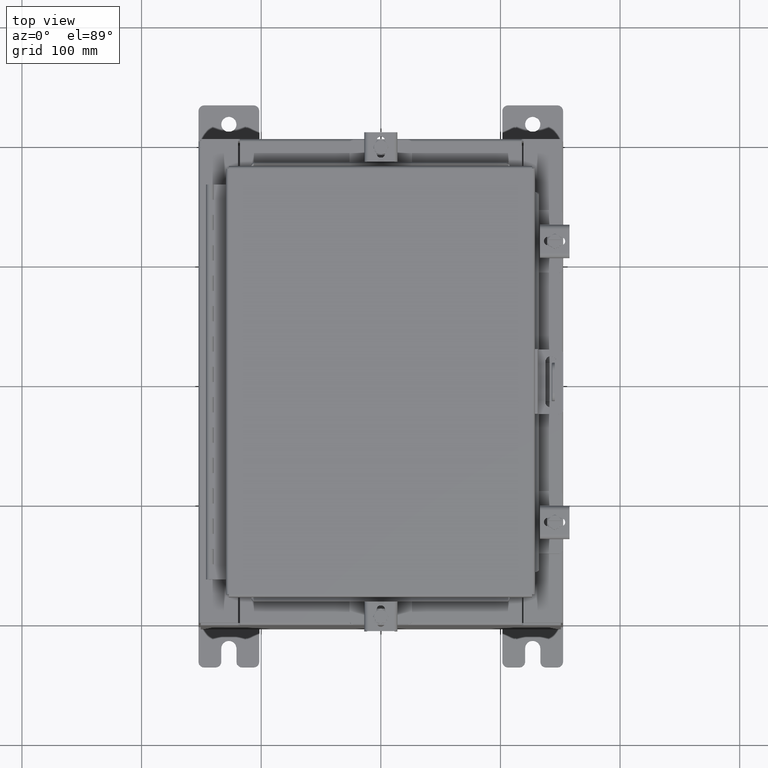
[diagram: clean part render]
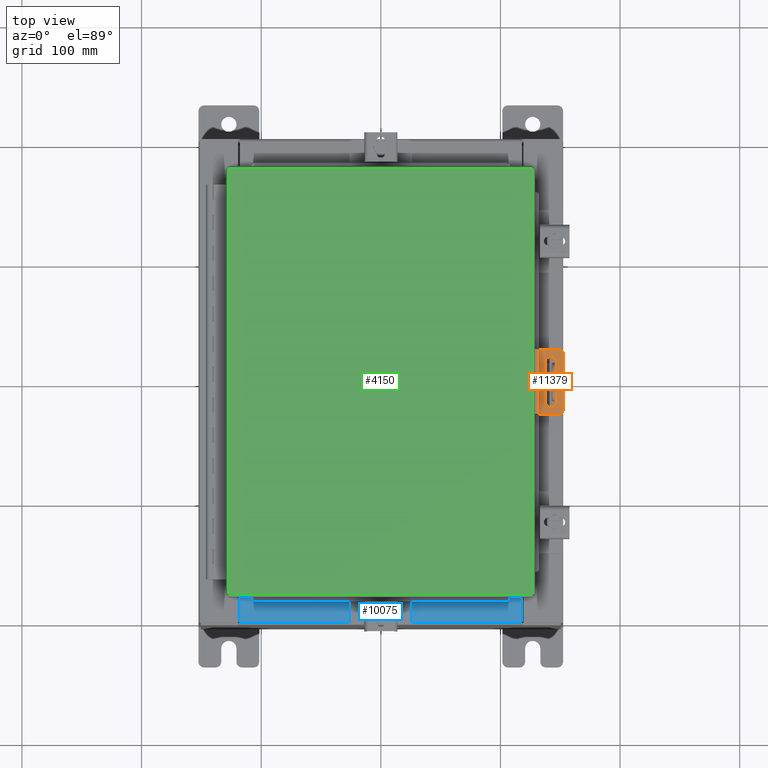
[diagram: same view with three faces highlighted in distinct colors, each labeled with its STEP entity id]
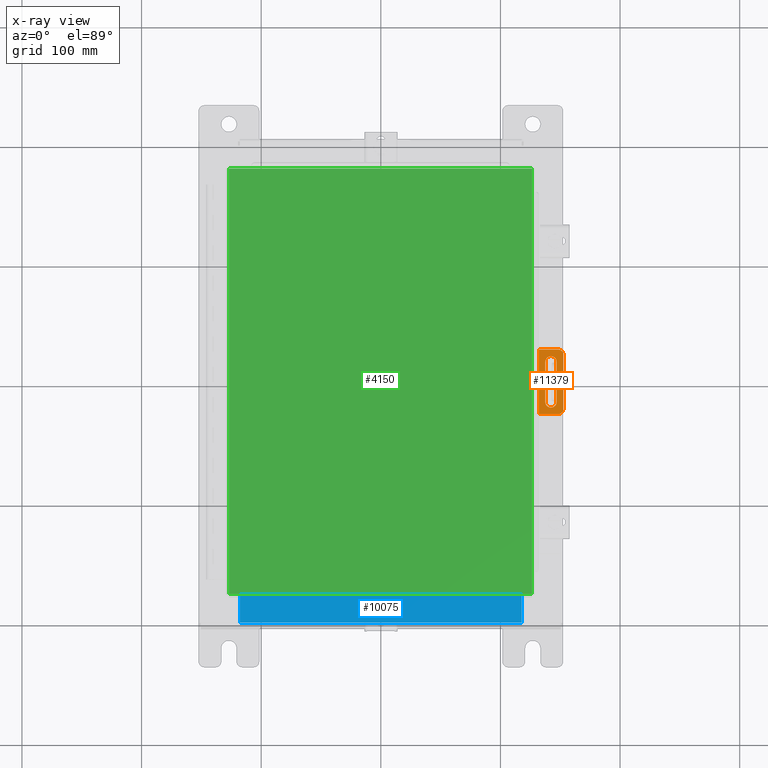
[diagram: x-ray of the same camera — body ghosted, the three highlighted faces saturated]
A machine part, top view with three faces highlighted in distinct colors.
The next image is the same camera in x-ray (body ghosted, the three faces saturated) — at least one of them is partly hidden behind the body in this view.
Their STEP definitions:

[orange] entity #11379 — the highlighted planar face has unit normal (0, 0, -1).
#15 = DIRECTION ( 'NONE',  ( 3.496114991891766800E-015, 1.000000000000000000, 0.0000000000000000000 ) ) ;
#851 = VECTOR ( 'NONE', #14208, 39.37007874015748100 ) ;
#1808 = CARTESIAN_POINT ( 'NONE',  ( 0.1299999999999998900, -0.3000000000000001000, 1.059999999999999600 ) ) ;
#1857 = LINE ( 'NONE', #17941, #12061 ) ;
#2504 = ORIENTED_EDGE ( 'NONE', *, *, #21083, .F. ) ;
#2711 = CIRCLE ( 'NONE', #6626, 0.1874999999999999700 ) ;
#3346 = ORIENTED_EDGE ( 'NONE', *, *, #14862, .T. ) ;
#3593 = VERTEX_POINT ( 'NONE', #16675 ) ;
#3845 = VERTEX_POINT ( 'NONE', #18377 ) ;
#3909 = ORIENTED_EDGE ( 'NONE', *, *, #4977, .T. ) ;
#4216 = CARTESIAN_POINT ( 'NONE',  ( 0.7839999999999999200, -0.3000000000000023200, 0.9040000000000000300 ) ) ;
#4826 = ORIENTED_EDGE ( 'NONE', *, *, #16424, .T. ) ;
#4977 = EDGE_CURVE ( 'NONE', #7710, #3593, #21788, .T. ) ;
#5103 = VECTOR ( 'NONE', #19755, 39.37007874015748100 ) ;
#5279 = CIRCLE ( 'NONE', #15867, 0.1559999999999999200 ) ;
#5734 = CARTESIAN_POINT ( 'NONE',  ( 0.3460000000000000900, -0.3000000000000008200, -0.6534999999999997500 ) ) ;
#6037 = DIRECTION ( 'NONE',  ( -3.496114991891766800E-015, -1.000000000000000000, 0.0000000000000000000 ) ) ;
#6270 = DIRECTION ( 'NONE',  ( 1.000000000000000000, -3.502369222646493300E-015, 0.0000000000000000000 ) ) ;
#6307 = LINE ( 'NONE', #16178, #851 ) ;
#6626 = AXIS2_PLACEMENT_3D ( 'NONE', #23443, #15, #19300 ) ;
#6633 = AXIS2_PLACEMENT_3D ( 'NONE', #7960, #21962, #10038 ) ;
#6665 = CARTESIAN_POINT ( 'NONE',  ( 0.3460000000000001400, -0.3000000000000008200, 0.6594999999999999800 ) ) ;
#6729 = CARTESIAN_POINT ( 'NONE',  ( 0.7839999999999999200, -0.3000000000000023800, 1.059999999999999600 ) ) ;
#7226 = EDGE_CURVE ( 'NONE', #8535, #21123, #15475, .T. ) ;
#7302 = CARTESIAN_POINT ( 'NONE',  ( 0.7840000000000000300, -0.3000000000000023800, -1.060000000000000300 ) ) ;
#7334 = EDGE_CURVE ( 'NONE', #7393, #3845, #2711, .T. ) ;
#7393 = VERTEX_POINT ( 'NONE', #20393 ) ;
#7710 = VERTEX_POINT ( 'NONE', #10387 ) ;
#7960 = CARTESIAN_POINT ( 'NONE',  ( 0.5335000000000003100, -0.3000000000000014900, 0.6594999999999999800 ) ) ;
#8004 = CARTESIAN_POINT ( 'NONE',  ( 0.9399999999999998400, -0.3000000000000029300, 1.059999999999999600 ) ) ;
#8303 = ORIENTED_EDGE ( 'NONE', *, *, #24670, .F. ) ;
#8535 = VERTEX_POINT ( 'NONE', #26039 ) ;
#8932 = FACE_BOUND ( 'NONE', #20624, .T. ) ;
#9156 = CARTESIAN_POINT ( 'NONE',  ( 0.9399999999999998400, -0.3000000000000029300, 1.059999999999999600 ) ) ;
#10038 = DIRECTION ( 'NONE',  ( -1.000000000000000000, 3.460340791974733800E-015, 0.0000000000000000000 ) ) ;
#10063 = ORIENTED_EDGE ( 'NONE', *, *, #7226, .T. ) ;
#10387 = CARTESIAN_POINT ( 'NONE',  ( 0.1299999999999998400, -0.3000000000000001000, -1.060000000000000300 ) ) ;
#10406 = ORIENTED_EDGE ( 'NONE', *, *, #7334, .F. ) ;
#10520 = EDGE_CURVE ( 'NONE', #23438, #7393, #10572, .T. ) ;
#10545 = LINE ( 'NONE', #5734, #5103 ) ;
#10572 = LINE ( 'NONE', #25757, #25810 ) ;
#10631 = DIRECTION ( 'NONE',  ( 1.000000000000000000, -3.496114991891766800E-015, 0.0000000000000000000 ) ) ;
#10813 = DIRECTION ( 'NONE',  ( -1.000000000000000000, 3.496114991891766400E-015, 0.0000000000000000000 ) ) ;
#11379 = ADVANCED_FACE ( 'NONE', ( #8932, #22977 ), #13457, .F. ) ;
#11597 = CIRCLE ( 'NONE', #6633, 0.1874999999999999700 ) ;
#11770 = ORIENTED_EDGE ( 'NONE', *, *, #10520, .F. ) ;
#12061 = VECTOR ( 'NONE', #10813, 39.37007874015748100 ) ;
#12497 = EDGE_CURVE ( 'NONE', #12597, #3593, #6307, .T. ) ;
#12597 = VERTEX_POINT ( 'NONE', #6729 ) ;
#13457 = PLANE ( 'NONE',  #20069 ) ;
#13994 = CARTESIAN_POINT ( 'NONE',  ( 0.9399999999999998400, -0.3000000000000029300, -0.9040000000000002500 ) ) ;
#14208 = DIRECTION ( 'NONE',  ( -1.000000000000000000, 3.496114991891766400E-015, 0.0000000000000000000 ) ) ;
#14833 = CARTESIAN_POINT ( 'NONE',  ( 0.7839999999999999200, -0.3000000000000023200, -0.9040000000000002500 ) ) ;
#14839 = VECTOR ( 'NONE', #21483, 39.37007874015748100 ) ;
#14862 = EDGE_CURVE ( 'NONE', #25163, #7710, #1857, .T. ) ;
#15082 = CARTESIAN_POINT ( 'NONE',  ( 0.7210000000000002000, -0.3000000000000021500, 0.6595000000000002000 ) ) ;
#15321 = VECTOR ( 'NONE', #22091, 39.37007874015748100 ) ;
#15475 = LINE ( 'NONE', #9156, #14839 ) ;
#15867 = AXIS2_PLACEMENT_3D ( 'NONE', #14833, #21027, #18508 ) ;
#16178 = CARTESIAN_POINT ( 'NONE',  ( 0.9399999999999998400, -0.3000000000000029300, 1.059999999999999600 ) ) ;
#16424 = EDGE_CURVE ( 'NONE', #21123, #25163, #5279, .T. ) ;
#16675 = CARTESIAN_POINT ( 'NONE',  ( 0.1299999999999998400, -0.3000000000000001000, 1.059999999999999600 ) ) ;
#16833 = AXIS2_PLACEMENT_3D ( 'NONE', #4216, #18349, #6270 ) ;
#17165 = ORIENTED_EDGE ( 'NONE', *, *, #12497, .F. ) ;
#17302 = EDGE_LOOP ( 'NONE', ( #10063, #4826, #3346, #3909, #17165, #24351 ) ) ;
#17935 = CIRCLE ( 'NONE', #16833, 0.1559999999999999200 ) ;
#17941 = CARTESIAN_POINT ( 'NONE',  ( 0.9399999999999998400, -0.3000000000000029300, -1.060000000000000300 ) ) ;
#18349 = DIRECTION ( 'NONE',  ( 3.496114991891766800E-015, 1.000000000000000000, -0.0000000000000000000 ) ) ;
#18377 = CARTESIAN_POINT ( 'NONE',  ( 0.3460000000000000900, -0.3000000000000008800, -0.6534999999999997500 ) ) ;
#18508 = DIRECTION ( 'NONE',  ( 1.000000000000000000, -3.502369222646493300E-015, 0.0000000000000000000 ) ) ;
#19300 = DIRECTION ( 'NONE',  ( -1.000000000000000000, 3.460340791974733800E-015, 0.0000000000000000000 ) ) ;
#19755 = DIRECTION ( 'NONE',  ( 5.201538449474986600E-017, 0.0000000000000000000, 1.000000000000000000 ) ) ;
#20005 = VERTEX_POINT ( 'NONE', #6665 ) ;
#20069 = AXIS2_PLACEMENT_3D ( 'NONE', #8004, #6037, #10631 ) ;
#20393 = CARTESIAN_POINT ( 'NONE',  ( 0.7210000000000000900, -0.3000000000000021500, -0.6534999999999998600 ) ) ;
#20624 = EDGE_LOOP ( 'NONE', ( #11770, #8303, #2504, #10406 ) ) ;
#21027 = DIRECTION ( 'NONE',  ( 3.496114991891766800E-015, 1.000000000000000000, -0.0000000000000000000 ) ) ;
#21083 = EDGE_CURVE ( 'NONE', #3845, #20005, #10545, .T. ) ;
#21123 = VERTEX_POINT ( 'NONE', #13994 ) ;
#21483 = DIRECTION ( 'NONE',  ( -0.0000000000000000000, -0.0000000000000000000, -1.000000000000000000 ) ) ;
#21788 = LINE ( 'NONE', #1808, #15321 ) ;
#21962 = DIRECTION ( 'NONE',  ( 3.496114991891766800E-015, 1.000000000000000000, 0.0000000000000000000 ) ) ;
#22091 = DIRECTION ( 'NONE',  ( -0.0000000000000000000, -0.0000000000000000000, 1.000000000000000000 ) ) ;
#22977 = FACE_OUTER_BOUND ( 'NONE', #17302, .T. ) ;
#23026 = EDGE_CURVE ( 'NONE', #12597, #8535, #17935, .T. ) ;
#23438 = VERTEX_POINT ( 'NONE', #15082 ) ;
#23443 = CARTESIAN_POINT ( 'NONE',  ( 0.5335000000000000900, -0.3000000000000014900, -0.6534999999999998600 ) ) ;
#24351 = ORIENTED_EDGE ( 'NONE', *, *, #23026, .T. ) ;
#24670 = EDGE_CURVE ( 'NONE', #20005, #23438, #11597, .T. ) ;
#25163 = VERTEX_POINT ( 'NONE', #7302 ) ;
#25757 = CARTESIAN_POINT ( 'NONE',  ( 0.7210000000000002000, -0.3000000000000021500, 0.6594999999999999800 ) ) ;
#25808 = DIRECTION ( 'NONE',  ( -1.040307689894997300E-016, 0.0000000000000000000, -1.000000000000000000 ) ) ;
#25810 = VECTOR ( 'NONE', #25808, 39.37007874015748100 ) ;
#26039 = CARTESIAN_POINT ( 'NONE',  ( 0.9399999999999998400, -0.3000000000000029300, 0.9040000000000000300 ) ) ;

[blue] entity #10075 — the highlighted planar face has unit normal (-0, -0, 1).
#84 = LINE ( 'NONE', #22185, #15744 ) ;
#998 = VERTEX_POINT ( 'NONE', #13445 ) ;
#3350 = CARTESIAN_POINT ( 'NONE',  ( 4.637200000000002700, -0.08769999999999993100, 3.999999999999999600 ) ) ;
#6075 = FACE_OUTER_BOUND ( 'NONE', #17875, .T. ) ;
#6140 = DIRECTION ( 'NONE',  ( -0.0000000000000000000, -1.000000000000000000, 3.566381192773190000E-015 ) ) ;
#6347 = AXIS2_PLACEMENT_3D ( 'NONE', #10822, #10826, #10881 ) ;
#6844 = LINE ( 'NONE', #21113, #22214 ) ;
#6903 = EDGE_CURVE ( 'NONE', #16477, #9057, #17376, .T. ) ;
#7233 = VECTOR ( 'NONE', #13228, 39.37007874015748100 ) ;
#8573 = CARTESIAN_POINT ( 'NONE',  ( -4.637199999999998200, -0.07469999999999973900, 3.999999999999999600 ) ) ;
#8855 = VECTOR ( 'NONE', #10636, 39.37007874015748100 ) ;
#9057 = VERTEX_POINT ( 'NONE', #15826 ) ;
#9066 = ORIENTED_EDGE ( 'NONE', *, *, #17922, .F. ) ;
#10075 = ADVANCED_FACE ( 'NONE', ( #6075 ), #10665, .T. ) ;
#10277 = ORIENTED_EDGE ( 'NONE', *, *, #21462, .F. ) ;
#10530 = CARTESIAN_POINT ( 'NONE',  ( 4.637200000000002700, -1.287299999999999900, 4.000000000000003600 ) ) ;
#10636 = DIRECTION ( 'NONE',  ( -0.0000000000000000000, 1.000000000000000000, -3.566381192773190000E-015 ) ) ;
#10665 = PLANE ( 'NONE',  #6347 ) ;
#10726 = VERTEX_POINT ( 'NONE', #10530 ) ;
#10822 = CARTESIAN_POINT ( 'NONE',  ( 0.0000000000000000000, 1.425992975200418200E-014, 3.999999999999999600 ) ) ;
#10826 = DIRECTION ( 'NONE',  ( 0.0000000000000000000, 3.566381192773190000E-015, 1.000000000000000000 ) ) ;
#10881 = DIRECTION ( 'NONE',  ( 0.0000000000000000000, -1.000000000000000000, 3.566381192773190000E-015 ) ) ;
#13228 = DIRECTION ( 'NONE',  ( -1.000000000000000000, 0.0000000000000000000, 0.0000000000000000000 ) ) ;
#13445 = CARTESIAN_POINT ( 'NONE',  ( -4.637199999999998200, -1.287299999999999200, 4.000000000000003600 ) ) ;
#15744 = VECTOR ( 'NONE', #6140, 39.37007874015748100 ) ;
#15826 = CARTESIAN_POINT ( 'NONE',  ( -4.637199999999998200, -0.08770000000000026400, 3.999999999999999600 ) ) ;
#16477 = VERTEX_POINT ( 'NONE', #3350 ) ;
#17120 = CARTESIAN_POINT ( 'NONE',  ( 0.0000000000000000000, -0.08770000000000026400, 4.000000000000000000 ) ) ;
#17376 = LINE ( 'NONE', #17120, #7233 ) ;
#17875 = EDGE_LOOP ( 'NONE', ( #10277, #24885, #9066, #18614 ) ) ;
#17922 = EDGE_CURVE ( 'NONE', #16477, #10726, #84, .T. ) ;
#18614 = ORIENTED_EDGE ( 'NONE', *, *, #6903, .T. ) ;
#21113 = CARTESIAN_POINT ( 'NONE',  ( 4.637200000000002700, -1.287299999999999900, 4.000000000000003600 ) ) ;
#21462 = EDGE_CURVE ( 'NONE', #998, #9057, #24779, .T. ) ;
#22185 = CARTESIAN_POINT ( 'NONE',  ( 4.637200000000002700, -1.300299999999999800, 4.000000000000003600 ) ) ;
#22214 = VECTOR ( 'NONE', #23086, 39.37007874015748100 ) ;
#23086 = DIRECTION ( 'NONE',  ( -1.000000000000000000, 0.0000000000000000000, 0.0000000000000000000 ) ) ;
#23478 = EDGE_CURVE ( 'NONE', #10726, #998, #6844, .T. ) ;
#24779 = LINE ( 'NONE', #8573, #8855 ) ;
#24885 = ORIENTED_EDGE ( 'NONE', *, *, #23478, .F. ) ;

[green] entity #4150 — the highlighted planar face has unit normal (0, 0, -1).
#432 = DIRECTION ( 'NONE',  ( 1.000000000000000000, -0.0000000000000000000, -0.0000000000000000000 ) ) ;
#2342 = LINE ( 'NONE', #11865, #7783 ) ;
#2387 = CARTESIAN_POINT ( 'NONE',  ( -4.990300000000000400, -7.006300000000000400, -2.048885995248197400E-016 ) ) ;
#2943 = LINE ( 'NONE', #16653, #23711 ) ;
#4150 = ADVANCED_FACE ( 'NONE', ( #15366 ), #16461, .F. ) ;
#4602 = CARTESIAN_POINT ( 'NONE',  ( -4.990300000000000400, 7.006300000000000400, -2.048885995248197400E-016 ) ) ;
#5513 = CARTESIAN_POINT ( 'NONE',  ( 4.990299999999998600, 7.006300000000000400, -2.048885995248197400E-016 ) ) ;
#7033 = CARTESIAN_POINT ( 'NONE',  ( 0.0000000000000000000, 0.0000000000000000000, 0.0000000000000000000 ) ) ;
#7128 = EDGE_LOOP ( 'NONE', ( #24822, #21684, #9318, #23247 ) ) ;
#7783 = VECTOR ( 'NONE', #23753, 39.37007874015748100 ) ;
#8393 = AXIS2_PLACEMENT_3D ( 'NONE', #7033, #20221, #18582 ) ;
#8866 = DIRECTION ( 'NONE',  ( 0.0000000000000000000, 1.000000000000000000, 0.0000000000000000000 ) ) ;
#9318 = ORIENTED_EDGE ( 'NONE', *, *, #15074, .T. ) ;
#11865 = CARTESIAN_POINT ( 'NONE',  ( -4.990300000000000400, 7.006300000000000400, -2.048885995248197400E-016 ) ) ;
#13312 = VERTEX_POINT ( 'NONE', #4602 ) ;
#14905 = CARTESIAN_POINT ( 'NONE',  ( 4.990299999999998600, -7.006300000000000400, 3.414809992080329000E-016 ) ) ;
#15074 = EDGE_CURVE ( 'NONE', #15324, #13312, #23538, .T. ) ;
#15324 = VERTEX_POINT ( 'NONE', #5513 ) ;
#15366 = FACE_OUTER_BOUND ( 'NONE', #7128, .T. ) ;
#16461 = PLANE ( 'NONE',  #8393 ) ;
#16653 = CARTESIAN_POINT ( 'NONE',  ( -4.990300000000000400, -7.006300000000000400, -2.048885995248197400E-016 ) ) ;
#18026 = VERTEX_POINT ( 'NONE', #2387 ) ;
#18582 = DIRECTION ( 'NONE',  ( -1.000000000000000000, 0.0000000000000000000, -0.0000000000000000000 ) ) ;
#18693 = LINE ( 'NONE', #14905, #22705 ) ;
#18848 = CARTESIAN_POINT ( 'NONE',  ( 4.990299999999998600, 7.006300000000000400, -2.048885995248197400E-016 ) ) ;
#20221 = DIRECTION ( 'NONE',  ( 0.0000000000000000000, 0.0000000000000000000, -1.000000000000000000 ) ) ;
#20379 = CARTESIAN_POINT ( 'NONE',  ( 4.990299999999998600, -7.006300000000000400, 3.414809992080329000E-016 ) ) ;
#20724 = EDGE_CURVE ( 'NONE', #23033, #15324, #18693, .T. ) ;
#21684 = ORIENTED_EDGE ( 'NONE', *, *, #20724, .T. ) ;
#22479 = DIRECTION ( 'NONE',  ( -1.000000000000000000, -0.0000000000000000000, -0.0000000000000000000 ) ) ;
#22705 = VECTOR ( 'NONE', #8866, 39.37007874015748100 ) ;
#22917 = VECTOR ( 'NONE', #22479, 39.37007874015748100 ) ;
#23033 = VERTEX_POINT ( 'NONE', #20379 ) ;
#23247 = ORIENTED_EDGE ( 'NONE', *, *, #24309, .T. ) ;
#23538 = LINE ( 'NONE', #18848, #22917 ) ;
#23711 = VECTOR ( 'NONE', #432, 39.37007874015748100 ) ;
#23753 = DIRECTION ( 'NONE',  ( 0.0000000000000000000, -1.000000000000000000, 0.0000000000000000000 ) ) ;
#24309 = EDGE_CURVE ( 'NONE', #13312, #18026, #2342, .T. ) ;
#24822 = ORIENTED_EDGE ( 'NONE', *, *, #24890, .T. ) ;
#24890 = EDGE_CURVE ( 'NONE', #18026, #23033, #2943, .T. ) ;